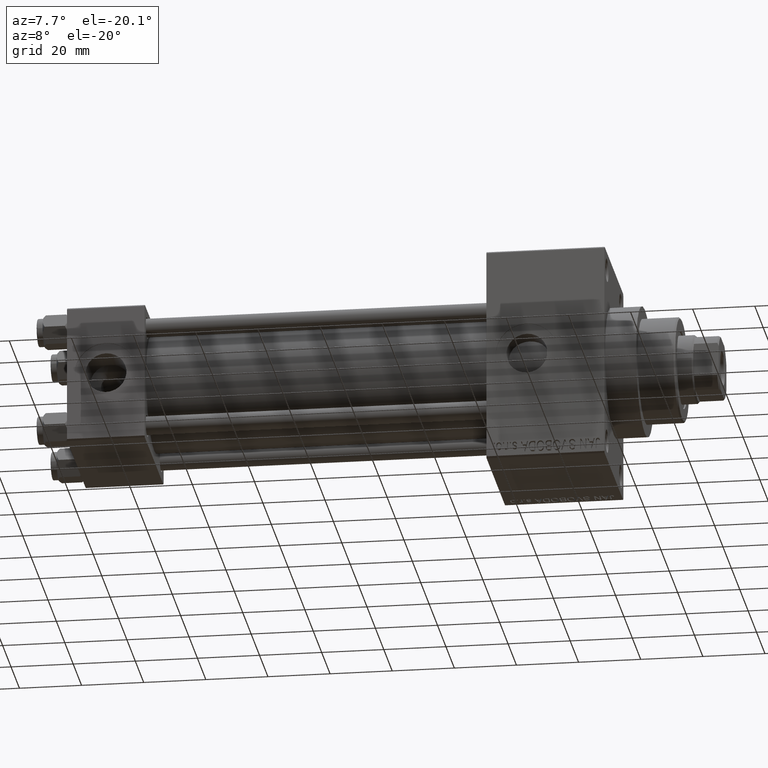
[diagram: clean part render]
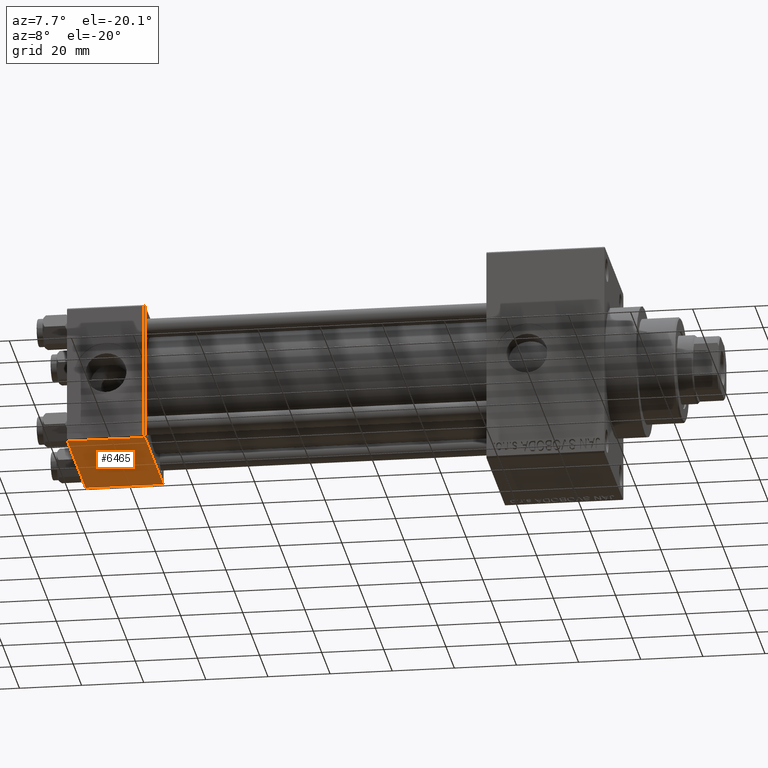
[diagram: same view with one face highlighted and labeled with its STEP entity id]
A machine part, auxiliary view. The second image highlights one B-rep face of the part: STEP entity #6465.
In plain terms, the highlighted planar face has unit normal (0, 0, -1).
Its self-contained STEP definition (entity closure, byte-faithful):
#395 = EDGE_CURVE ( 'NONE', #18998, #44340, #10098, .T. ) ;
#1006 = DIRECTION ( 'NONE',  ( 0.000000000000000000, -1.000000000000000000, -2.312964634635742957E-16 ) ) ;
#3922 = EDGE_CURVE ( 'NONE', #42039, #44340, #23212, .T. ) ;
#3986 = DIRECTION ( 'NONE',  ( 0.000000000000000000, 1.000000000000000000, 2.312964634635742957E-16 ) ) ;
#6465 = ADVANCED_FACE ( 'NONE', ( #23182 ), #36612, .T. ) ;
#8398 = LINE ( 'NONE', #22897, #33498 ) ;
#8937 = DIRECTION ( 'NONE',  ( -1.000000000000000000, 0.000000000000000000, 0.000000000000000000 ) ) ;
#10098 = LINE ( 'NONE', #35562, #22941 ) ;
#16766 = DIRECTION ( 'NONE',  ( 0.000000000000000000, -1.000000000000000000, -2.312964634635742957E-16 ) ) ;
#16978 = LINE ( 'NONE', #17441, #19948 ) ;
#17018 = AXIS2_PLACEMENT_3D ( 'NONE', #37731, #25396, #3986 ) ;
#17441 = CARTESIAN_POINT ( 'NONE',  ( 25.00000000000000000, 21.99999999999999289, -22.49999999999999645 ) ) ;
#18998 = VERTEX_POINT ( 'NONE', #44970 ) ;
#19948 = VECTOR ( 'NONE', #24574, 1000.000000000000000 ) ;
#22897 = CARTESIAN_POINT ( 'NONE',  ( 25.00000000000000000, 22.50000000000000000, -22.49999999999999645 ) ) ;
#22941 = VECTOR ( 'NONE', #16766, 1000.000000000000000 ) ;
#23182 = FACE_OUTER_BOUND ( 'NONE', #26840, .T. ) ;
#23212 = LINE ( 'NONE', #34180, #29841 ) ;
#24574 = DIRECTION ( 'NONE',  ( 1.000000000000000000, 0.000000000000000000, 0.000000000000000000 ) ) ;
#25396 = DIRECTION ( 'NONE',  ( 0.000000000000000000, 2.312964634635742957E-16, -1.000000000000000000 ) ) ;
#26840 = EDGE_LOOP ( 'NONE', ( #37706, #30678, #33282, #32913 ) ) ;
#29841 = VECTOR ( 'NONE', #8937, 1000.000000000000000 ) ;
#30678 = ORIENTED_EDGE ( 'NONE', *, *, #44906, .T. ) ;
#31440 = CARTESIAN_POINT ( 'NONE',  ( 0.000000000000000000, -21.99999999999997158, -22.50000000000000711 ) ) ;
#32913 = ORIENTED_EDGE ( 'NONE', *, *, #3922, .T. ) ;
#33282 = ORIENTED_EDGE ( 'NONE', *, *, #36253, .T. ) ;
#33498 = VECTOR ( 'NONE', #1006, 1000.000000000000000 ) ;
#34180 = CARTESIAN_POINT ( 'NONE',  ( 0.000000000000000000, -21.99999999999998579, -22.50000000000000711 ) ) ;
#35562 = CARTESIAN_POINT ( 'NONE',  ( 0.000000000000000000, 22.50000000000000000, -22.49999999999999645 ) ) ;
#36253 = EDGE_CURVE ( 'NONE', #37119, #42039, #8398, .T. ) ;
#36612 = PLANE ( 'NONE',  #17018 ) ;
#37119 = VERTEX_POINT ( 'NONE', #40080 ) ;
#37706 = ORIENTED_EDGE ( 'NONE', *, *, #395, .F. ) ;
#37731 = CARTESIAN_POINT ( 'NONE',  ( 25.00000000000000000, 22.50000000000000000, -22.49999999999999645 ) ) ;
#40080 = CARTESIAN_POINT ( 'NONE',  ( 25.00000000000000000, 21.99999999999999289, -22.49999999999999645 ) ) ;
#42039 = VERTEX_POINT ( 'NONE', #46632 ) ;
#44340 = VERTEX_POINT ( 'NONE', #31440 ) ;
#44906 = EDGE_CURVE ( 'NONE', #18998, #37119, #16978, .T. ) ;
#44970 = CARTESIAN_POINT ( 'NONE',  ( 0.000000000000000000, 21.99999999999999289, -22.49999999999999645 ) ) ;
#46632 = CARTESIAN_POINT ( 'NONE',  ( 25.00000000000000000, -21.99999999999997158, -22.50000000000000711 ) ) ;